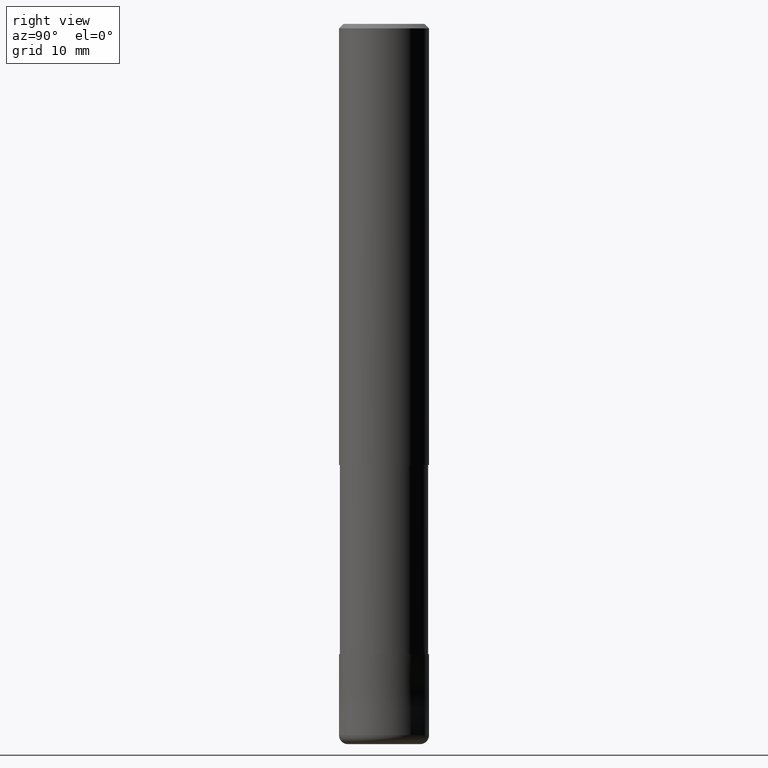
[diagram: clean part render]
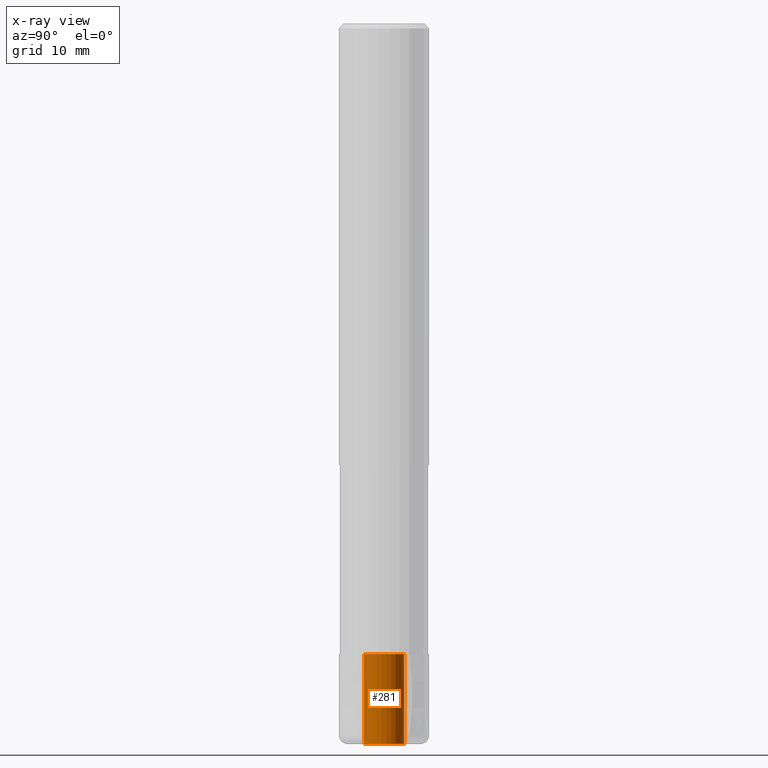
[diagram: x-ray — body ghosted, one internal face saturated and labeled with its STEP entity id]
A machine part, right view, then the same camera in x-ray: the body is ghosted and one INTERNAL B-rep face — a face not visible from any outside direction — is saturated and labeled: STEP entity #281.
In plain terms, the highlighted cylindrical surface (edge-blend (fillet) strip) has radius 2.25 mm, axis along (-0, -0, 1).
Its self-contained STEP definition (entity closure, byte-faithful):
#141=EDGE_CURVE('',#277,#265,#332,.T.);
#213=EDGE_CURVE('',#277,#283,#417,.T.);
#255=VERTEX_POINT('',#465);
#261=EDGE_CURVE('',#255,#283,#471,.T.);
#265=VERTEX_POINT('',#475);
#275=EDGE_CURVE('',#265,#255,#485,.T.);
#277=VERTEX_POINT('',#487);
#281=ADVANCED_FACE('',(#491),#492,.F.);
#283=VERTEX_POINT('',#494);
#332=LINE('',#541,#542);
#417=CIRCLE('',#648,2.25);
#465=CARTESIAN_POINT('',(2.75536429610035E-016,-2.25,-80.0));
#471=LINE('',#717,#718);
#475=CARTESIAN_POINT('',(0.0,2.25,-80.0));
#485=CIRCLE('',#734,2.25);
#487=CARTESIAN_POINT('',(0.0,2.25,-70.0));
#491=FACE_OUTER_BOUND('',#742,.T.);
#492=CYLINDRICAL_SURFACE('',#743,2.25);
#494=CARTESIAN_POINT('',(2.75536429610035E-016,-2.25,-70.0));
#541=CARTESIAN_POINT('',(-2.75536429610035E-016,2.25,-75.0));
#542=VECTOR('',#792,1.0);
#648=AXIS2_PLACEMENT_3D('',#911,#912,#913);
#717=CARTESIAN_POINT('',(2.75536429610035E-016,-2.25,-75.0));
#718=VECTOR('',#980,1.0);
#734=AXIS2_PLACEMENT_3D('',#983,#984,#985);
#742=EDGE_LOOP('',(#988,#989,#990,#991));
#743=AXIS2_PLACEMENT_3D('',#992,#993,#994);
#792=DIRECTION('',(0.0,-0.0,-1.0));
#911=CARTESIAN_POINT('',(0.0,0.0,-70.0));
#912=DIRECTION('',(0.0,0.0,-1.0));
#913=DIRECTION('',(0.0,1.0,0.0));
#980=DIRECTION('',(0.0,-0.0,1.0));
#983=CARTESIAN_POINT('',(0.0,0.0,-80.0));
#984=DIRECTION('',(0.0,0.0,-1.0));
#985=DIRECTION('',(0.0,1.0,0.0));
#988=ORIENTED_EDGE('',*,*,#141,.T.);
#989=ORIENTED_EDGE('',*,*,#275,.T.);
#990=ORIENTED_EDGE('',*,*,#261,.T.);
#991=ORIENTED_EDGE('',*,*,#213,.F.);
#992=CARTESIAN_POINT('',(0.0,0.0,-75.0));
#993=DIRECTION('',(-0.0,-0.0,1.0));
#994=DIRECTION('',(0.0,1.0,0.0));